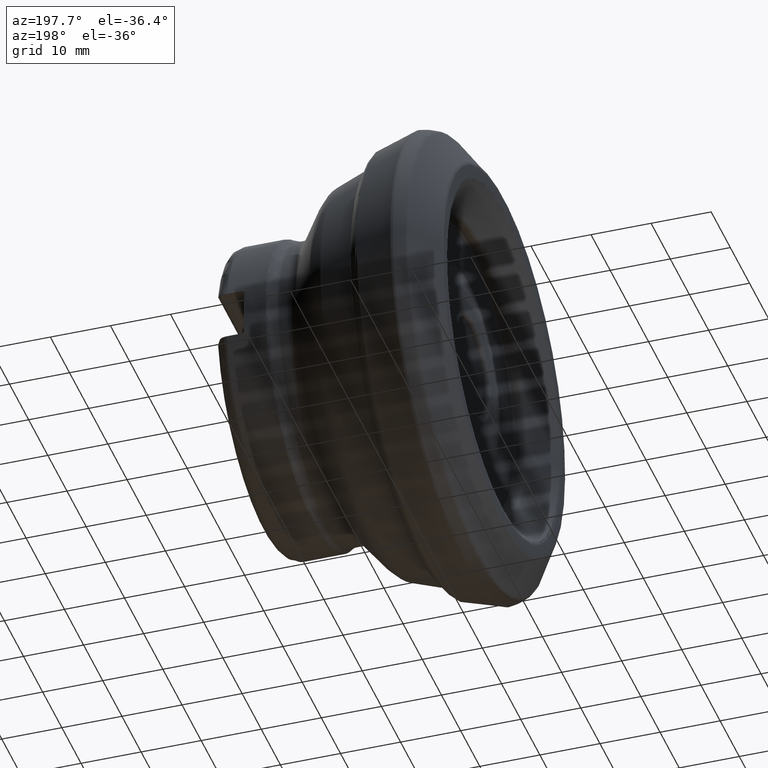
[diagram: clean part render]
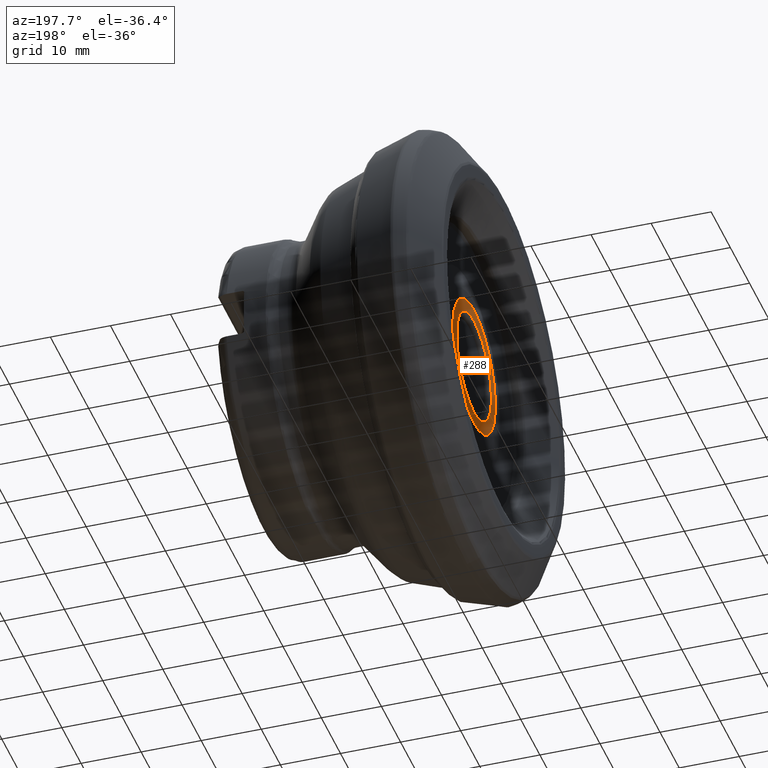
[diagram: same view with one face highlighted and labeled with its STEP entity id]
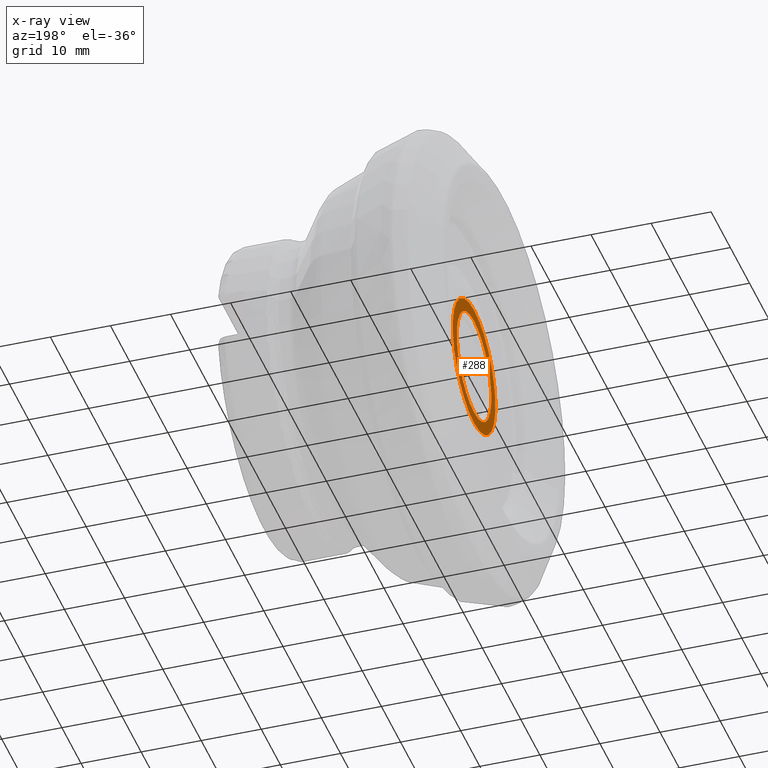
[diagram: x-ray of the same camera — body ghosted, the highlighted face saturated]
A machine part, auxiliary view. The second image highlights one B-rep face of the part: STEP entity #288.
The next image is the same camera in x-ray: the body ghosted, the highlighted face saturated — about 7% of this face is hidden behind the body in this view.
In plain terms, the highlighted planar face has unit normal (1, 0, 0).
Its self-contained STEP definition (entity closure, byte-faithful):
#148=PLANE('',#1174);
#288=ADVANCED_FACE('',(#471,#472),#148,.F.);
#471=FACE_BOUND('',#584,.T.);
#472=FACE_BOUND('',#585,.T.);
#584=EDGE_LOOP('',(#806));
#585=EDGE_LOOP('',(#807));
#806=ORIENTED_EDGE('',*,*,#1008,.T.);
#807=ORIENTED_EDGE('',*,*,#1010,.T.);
#897=VERTEX_POINT('',#2035);
#899=VERTEX_POINT('',#2040);
#1008=EDGE_CURVE('',#897,#897,#1067,.T.);
#1010=EDGE_CURVE('',#899,#899,#1069,.T.);
#1067=CIRCLE('',#1170,9.);
#1069=CIRCLE('',#1173,11.098691593519);
#1170=AXIS2_PLACEMENT_3D('',#2034,#1423,#1424);
#1173=AXIS2_PLACEMENT_3D('',#2039,#1429,#1430);
#1174=AXIS2_PLACEMENT_3D('',#2041,#1431,#1432);
#1423=DIRECTION('',(1.,0.,0.));
#1424=DIRECTION('',(0.,0.,-1.));
#1429=DIRECTION('',(-1.,0.,0.));
#1430=DIRECTION('',(0.,0.,-1.));
#1431=DIRECTION('',(1.,0.,0.));
#1432=DIRECTION('',(0.,0.,-1.));
#2034=CARTESIAN_POINT('',(5.,-5.00155472593633E-14,0.));
#2035=CARTESIAN_POINT('',(5.,-5.00155472593633E-14,-9.));
#2039=CARTESIAN_POINT('',(5.,0.,0.));
#2040=CARTESIAN_POINT('',(5.,0.,-11.098691593519));
#2041=CARTESIAN_POINT('',(5.,-12.,0.));